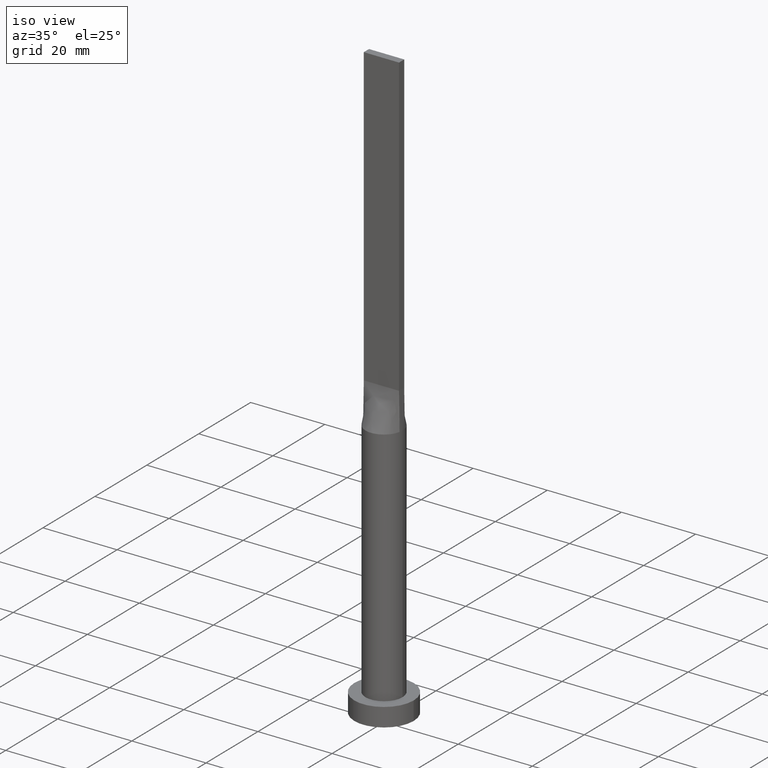
[diagram: clean part render]
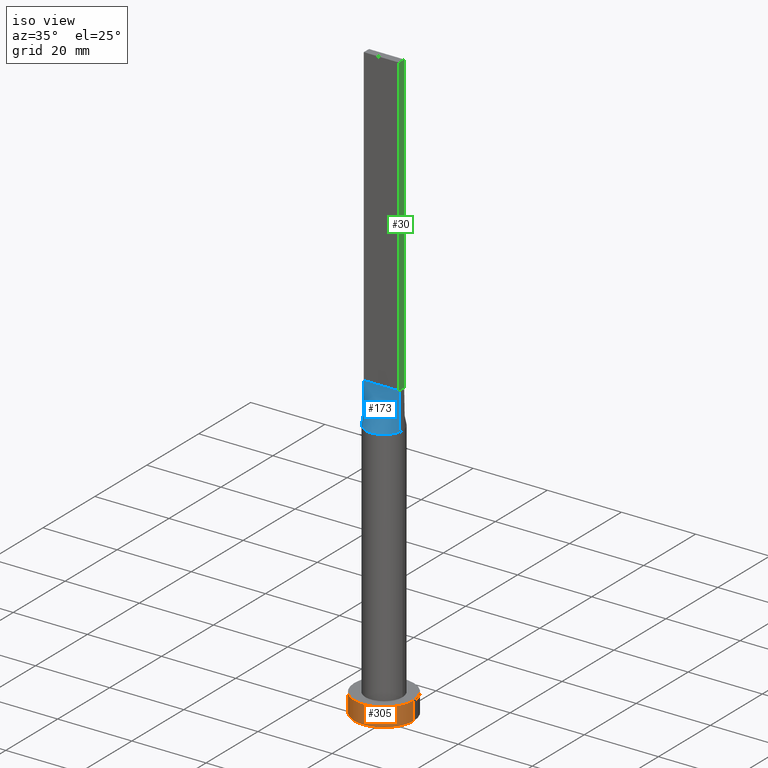
[diagram: same view with three faces highlighted in distinct colors, each labeled with its STEP entity id]
A machine part, iso view with three faces highlighted in distinct colors.
Their STEP definitions:

[orange] entity #305 — the highlighted cylindrical surface (edge-blend (fillet) strip) has radius 8 mm, axis along (-0, -0, -1).
#18 = AXIS2_PLACEMENT_3D ( 'NONE', #128, #311, #537 ) ;
#46 = DIRECTION ( 'NONE',  ( 0.000000000000000000, 0.000000000000000000, 1.000000000000000000 ) ) ;
#61 = EDGE_LOOP ( 'NONE', ( #337, #340, #204, #166 ) ) ;
#68 = EDGE_CURVE ( 'NONE', #322, #154, #453, .T. ) ;
#79 = DIRECTION ( 'NONE',  ( -0.000000000000000000, -0.000000000000000000, -1.000000000000000000 ) ) ;
#94 = VECTOR ( 'NONE', #79, 1000.000000000000000 ) ;
#128 = CARTESIAN_POINT ( 'NONE',  ( 0.000000000000000000, 0.000000000000000000, 5.000000000000000000 ) ) ;
#154 = VERTEX_POINT ( 'NONE', #399 ) ;
#166 = ORIENTED_EDGE ( 'NONE', *, *, #328, .T. ) ;
#184 = AXIS2_PLACEMENT_3D ( 'NONE', #460, #46, #458 ) ;
#204 = ORIENTED_EDGE ( 'NONE', *, *, #478, .T. ) ;
#216 = EDGE_CURVE ( 'NONE', #386, #322, #361, .T. ) ;
#223 = DIRECTION ( 'NONE',  ( -0.000000000000000000, -0.000000000000000000, -1.000000000000000000 ) ) ;
#251 = VECTOR ( 'NONE', #223, 1000.000000000000000 ) ;
#258 = CARTESIAN_POINT ( 'NONE',  ( 8.000000000000000000, 9.797174393178825657E-16, 5.000000000000000000 ) ) ;
#265 = LINE ( 'NONE', #268, #251 ) ;
#268 = CARTESIAN_POINT ( 'NONE',  ( -8.000000000000000000, 0.000000000000000000, 5.000000000000000000 ) ) ;
#305 = ADVANCED_FACE ( 'NONE', ( #584 ), #590, .T. ) ;
#306 = CARTESIAN_POINT ( 'NONE',  ( -8.000000000000000000, 0.000000000000000000, 0.000000000000000000 ) ) ;
#309 = CARTESIAN_POINT ( 'NONE',  ( -8.000000000000000000, 0.000000000000000000, 5.000000000000000000 ) ) ;
#311 = DIRECTION ( 'NONE',  ( -0.000000000000000000, -0.000000000000000000, -1.000000000000000000 ) ) ;
#312 = CARTESIAN_POINT ( 'NONE',  ( 8.000000000000000000, 9.797174393178825657E-16, 5.000000000000000000 ) ) ;
#314 = DIRECTION ( 'NONE',  ( 1.000000000000000000, 0.000000000000000000, 0.000000000000000000 ) ) ;
#322 = VERTEX_POINT ( 'NONE', #258 ) ;
#328 = EDGE_CURVE ( 'NONE', #408, #154, #567, .T. ) ;
#334 = AXIS2_PLACEMENT_3D ( 'NONE', #533, #358, #314 ) ;
#337 = ORIENTED_EDGE ( 'NONE', *, *, #68, .F. ) ;
#340 = ORIENTED_EDGE ( 'NONE', *, *, #216, .F. ) ;
#358 = DIRECTION ( 'NONE',  ( 0.000000000000000000, 0.000000000000000000, 1.000000000000000000 ) ) ;
#361 = CIRCLE ( 'NONE', #184, 8.000000000000000000 ) ;
#386 = VERTEX_POINT ( 'NONE', #309 ) ;
#399 = CARTESIAN_POINT ( 'NONE',  ( 8.000000000000000000, 9.797174393178825657E-16, 0.000000000000000000 ) ) ;
#408 = VERTEX_POINT ( 'NONE', #306 ) ;
#453 = LINE ( 'NONE', #312, #94 ) ;
#458 = DIRECTION ( 'NONE',  ( 1.000000000000000000, 0.000000000000000000, 0.000000000000000000 ) ) ;
#460 = CARTESIAN_POINT ( 'NONE',  ( 0.000000000000000000, 0.000000000000000000, 5.000000000000000000 ) ) ;
#478 = EDGE_CURVE ( 'NONE', #386, #408, #265, .T. ) ;
#533 = CARTESIAN_POINT ( 'NONE',  ( 0.000000000000000000, 0.000000000000000000, 0.000000000000000000 ) ) ;
#537 = DIRECTION ( 'NONE',  ( -1.000000000000000000, 0.000000000000000000, 0.000000000000000000 ) ) ;
#567 = CIRCLE ( 'NONE', #334, 8.000000000000000000 ) ;
#584 = FACE_OUTER_BOUND ( 'NONE', #61, .T. ) ;
#590 = CYLINDRICAL_SURFACE ( 'NONE', #18, 8.000000000000000000 ) ;

[blue] entity #173 — the highlighted face is a freeform B-spline surface patch.
#1 = CARTESIAN_POINT ( 'NONE',  ( 1.583333333333339255, -0.9999999999999995559, 79.99999999999998579 ) ) ;
#4 = CARTESIAN_POINT ( 'NONE',  ( 0.3958333333333403647, -0.9999999999999993339, 79.99999999999998579 ) ) ;
#7 = CARTESIAN_POINT ( 'NONE',  ( -4.667610010780609997, -1.859271532507959845, 70.00000000000001421 ) ) ;
#15 = ORIENTED_EDGE ( 'NONE', *, *, #591, .F. ) ;
#42 = CARTESIAN_POINT ( 'NONE',  ( -4.892748924933745691, -1.030052405249207936, 70.00000000000000000 ) ) ;
#44 = B_SPLINE_SURFACE_WITH_KNOTS ( 'NONE', 3, 1, ( 
 ( #42, #183 ),
 ( #419, #103 ),
 ( #7, #186 ),
 ( #367, #422 ),
 ( #53, #509 ),
 ( #513, #191 ),
 ( #193, #549 ),
 ( #552, #412 ),
 ( #141, #95 ),
 ( #99, #321 ),
 ( #283, #56 ),
 ( #280, #239 ),
 ( #276, #4 ),
 ( #375, #147 ),
 ( #369, #469 ),
 ( #407, #1 ),
 ( #561, #143 ),
 ( #463, #50 ),
 ( #371, #559 ),
 ( #233, #229 ),
 ( #149, #272 ),
 ( #326, #139 ) ),
 .UNSPECIFIED., .F., .F., .F.,
 ( 4, 2, 2, 2, 2, 2, 2, 2, 2, 2, 4 ),
 ( 2, 2 ),
 ( 0.000000000000000000, 0.1250000000000000278, 0.2500000000000000555, 0.3750000000000001110, 0.4375000000000000555, 0.5000000000000000000, 0.5625000000000000000, 0.6250000000000000000, 0.7500000000000000000, 0.8750000000000001110, 1.000000000000000000 ),
 ( 0.000000000000000000, 1.000000000000000000 ),
 .UNSPECIFIED. ) ;
#47 = EDGE_CURVE ( 'NONE', #511, #275, #307, .T. ) ;
#50 = CARTESIAN_POINT ( 'NONE',  ( 2.770833333333338366, -0.9999999999999995559, 79.99999999999998579 ) ) ;
#53 = CARTESIAN_POINT ( 'NONE',  ( -3.900093280396790263, -3.182195704254722646, 70.00000000000000000 ) ) ;
#56 = CARTESIAN_POINT ( 'NONE',  ( -0.1979166666666593299, -0.9999999999999993339, 79.99999999999998579 ) ) ;
#58 = VECTOR ( 'NONE', #133, 999.9999999999998863 ) ;
#64 = ORIENTED_EDGE ( 'NONE', *, *, #286, .T. ) ;
#69 = CIRCLE ( 'NONE', #108, 5.000000000000000000 ) ;
#71 = VERTEX_POINT ( 'NONE', #357 ) ;
#75 = CARTESIAN_POINT ( 'NONE',  ( 0.000000000000000000, 0.000000000000000000, 70.00000000000000000 ) ) ;
#87 = VECTOR ( 'NONE', #411, 1000.000000000000000 ) ;
#88 = LINE ( 'NONE', #370, #58 ) ;
#95 = CARTESIAN_POINT ( 'NONE',  ( -0.7916666666666588581, -0.9999999999999991118, 79.99999999999998579 ) ) ;
#99 = CARTESIAN_POINT ( 'NONE',  ( -0.6760916456145810161, -4.965368365385190330, 70.00000000000004263 ) ) ;
#103 = CARTESIAN_POINT ( 'NONE',  ( -4.354166666666665186, -0.9999999999999991118, 80.00000000000000000 ) ) ;
#108 = AXIS2_PLACEMENT_3D ( 'NONE', #75, #260, #350 ) ;
#133 = DIRECTION ( 'NONE',  ( -0.01427337385845013802, -0.003004920812305207807, -0.9998936149659166661 ) ) ;
#139 = CARTESIAN_POINT ( 'NONE',  ( 4.750000000000000000, -0.9999999999999997780, 80.00000000000000000 ) ) ;
#141 = CARTESIAN_POINT ( 'NONE',  ( -1.331739278681922656, -4.830988864699811813, 70.00000000000001421 ) ) ;
#143 = CARTESIAN_POINT ( 'NONE',  ( 1.979166666666672514, -0.9999999999999995559, 79.99999999999998579 ) ) ;
#147 = CARTESIAN_POINT ( 'NONE',  ( 0.7916666666666735130, -0.9999999999999995559, 79.99999999999998579 ) ) ;
#149 = CARTESIAN_POINT ( 'NONE',  ( 4.808752461626937702, -1.429035605956550103, 70.00000000000000000 ) ) ;
#156 = CARTESIAN_POINT ( 'NONE',  ( 4.750000000000000000, -0.9999999999999997780, 80.00000000000000000 ) ) ;
#165 = CARTESIAN_POINT ( 'NONE',  ( -4.750000000000000000, -0.9999999999999991118, 80.00000000000000000 ) ) ;
#173 = ADVANCED_FACE ( 'NONE', ( #236 ), #44, .T. ) ;
#183 = CARTESIAN_POINT ( 'NONE',  ( -4.750000000000000000, -0.9999999999999991118, 80.00000000000000000 ) ) ;
#186 = CARTESIAN_POINT ( 'NONE',  ( -3.958333333333331261, -0.9999999999999991118, 80.00000000000000000 ) ) ;
#191 = CARTESIAN_POINT ( 'NONE',  ( -1.979166666666659857, -0.9999999999999991118, 79.99999999999998579 ) ) ;
#193 = CARTESIAN_POINT ( 'NONE',  ( -2.546422404201599488, -4.351724242187074765, 70.00000000000000000 ) ) ;
#229 = CARTESIAN_POINT ( 'NONE',  ( 3.958333333333336146, -0.9999999999999995559, 79.99999999999998579 ) ) ;
#233 = CARTESIAN_POINT ( 'NONE',  ( 4.667610010780611773, -1.859271532507964286, 70.00000000000005684 ) ) ;
#236 = FACE_OUTER_BOUND ( 'NONE', #570, .T. ) ;
#239 = CARTESIAN_POINT ( 'NONE',  ( 0.1979166666666737351, -0.9999999999999993339, 79.99999999999998579 ) ) ;
#260 = DIRECTION ( 'NONE',  ( 0.000000000000000000, 0.000000000000000000, 1.000000000000000000 ) ) ;
#272 = CARTESIAN_POINT ( 'NONE',  ( 4.354166666666668739, -0.9999999999999995559, 79.99999999999998579 ) ) ;
#275 = VERTEX_POINT ( 'NONE', #156 ) ;
#276 = CARTESIAN_POINT ( 'NONE',  ( 0.6760916456145764641, -4.965368365385190330, 70.00000000000002842 ) ) ;
#280 = CARTESIAN_POINT ( 'NONE',  ( 0.3380808736611294329, -5.000000000000000000, 69.99999999999998579 ) ) ;
#281 = ORIENTED_EDGE ( 'NONE', *, *, #519, .T. ) ;
#283 = CARTESIAN_POINT ( 'NONE',  ( -0.3380808736611334853, -5.000000000000000000, 70.00000000000001421 ) ) ;
#286 = EDGE_CURVE ( 'NONE', #71, #511, #69, .T. ) ;
#289 = ORIENTED_EDGE ( 'NONE', *, *, #47, .T. ) ;
#298 = VERTEX_POINT ( 'NONE', #165 ) ;
#307 = LINE ( 'NONE', #402, #406 ) ;
#316 = CARTESIAN_POINT ( 'NONE',  ( 4.892747712986307285, -1.030052143680505683, 70.00000000000000000 ) ) ;
#321 = CARTESIAN_POINT ( 'NONE',  ( -0.3958333333333258208, -0.9999999999999991118, 79.99999999999998579 ) ) ;
#326 = CARTESIAN_POINT ( 'NONE',  ( 4.892748924933744803, -1.030052405249212155, 70.00000000000000000 ) ) ;
#350 = DIRECTION ( 'NONE',  ( 1.000000000000000000, 0.000000000000000000, 0.000000000000000000 ) ) ;
#357 = CARTESIAN_POINT ( 'NONE',  ( -4.892752739180945554, -1.030053203145257168, 70.00000000000000000 ) ) ;
#367 = CARTESIAN_POINT ( 'NONE',  ( -4.214142381859629971, -2.735777372109855499, 70.00000000000002842 ) ) ;
#369 = CARTESIAN_POINT ( 'NONE',  ( 1.649264041307592965, -4.731318088779740805, 70.00000000000000000 ) ) ;
#370 = CARTESIAN_POINT ( 'NONE',  ( -4.821374462466872401, -1.015026202624603524, 75.00000000000001421 ) ) ;
#371 = CARTESIAN_POINT ( 'NONE',  ( 4.214142381859629971, -2.735777372109856831, 70.00000000000001421 ) ) ;
#375 = CARTESIAN_POINT ( 'NONE',  ( 1.331739278681917771, -4.830988864699812702, 70.00000000000001421 ) ) ;
#402 = CARTESIAN_POINT ( 'NONE',  ( 4.821374462466871513, -1.015026202624605967, 75.00000000000001421 ) ) ;
#406 = VECTOR ( 'NONE', #585, 999.9999999999998863 ) ;
#407 = CARTESIAN_POINT ( 'NONE',  ( 2.546422404201595491, -4.351724242187078318, 70.00000000000000000 ) ) ;
#411 = DIRECTION ( 'NONE',  ( 1.000000000000000000, -6.847592668329501559E-17, 0.000000000000000000 ) ) ;
#412 = CARTESIAN_POINT ( 'NONE',  ( -0.9895833333333253767, -0.9999999999999991118, 79.99999999999998579 ) ) ;
#414 = LINE ( 'NONE', #507, #87 ) ;
#419 = CARTESIAN_POINT ( 'NONE',  ( -4.808752461626938590, -1.429035605956546329, 69.99999999999998579 ) ) ;
#422 = CARTESIAN_POINT ( 'NONE',  ( -3.166666666666662078, -0.9999999999999991118, 79.99999999999998579 ) ) ;
#463 = CARTESIAN_POINT ( 'NONE',  ( 3.900093280396789819, -3.182195704254725754, 70.00000000000000000 ) ) ;
#469 = CARTESIAN_POINT ( 'NONE',  ( 0.9895833333333399207, -0.9999999999999995559, 79.99999999999998579 ) ) ;
#507 = CARTESIAN_POINT ( 'NONE',  ( -4.750000000000000000, -0.9999999999999991118, 80.00000000000000000 ) ) ;
#509 = CARTESIAN_POINT ( 'NONE',  ( -2.770833333333328152, -0.9999999999999991118, 79.99999999999998579 ) ) ;
#511 = VERTEX_POINT ( 'NONE', #316 ) ;
#513 = CARTESIAN_POINT ( 'NONE',  ( -3.067114325249250317, -3.991228734590923199, 70.00000000000001421 ) ) ;
#519 = EDGE_CURVE ( 'NONE', #298, #71, #88, .T. ) ;
#549 = CARTESIAN_POINT ( 'NONE',  ( -1.583333333333325932, -0.9999999999999991118, 79.99999999999998579 ) ) ;
#552 = CARTESIAN_POINT ( 'NONE',  ( -1.649264041307596962, -4.731318088779738140, 70.00000000000000000 ) ) ;
#559 = CARTESIAN_POINT ( 'NONE',  ( 3.166666666666671404, -0.9999999999999995559, 79.99999999999998579 ) ) ;
#561 = CARTESIAN_POINT ( 'NONE',  ( 3.067114325249245876, -3.991228734590925864, 70.00000000000000000 ) ) ;
#570 = EDGE_LOOP ( 'NONE', ( #64, #289, #15, #281 ) ) ;
#585 = DIRECTION ( 'NONE',  ( -0.01427337385845005129, 0.003004920812305554318, 0.9998936149659166661 ) ) ;
#591 = EDGE_CURVE ( 'NONE', #298, #275, #414, .T. ) ;

[green] entity #30 — the highlighted planar face has unit normal (-1, 0, 0).
#12 = CARTESIAN_POINT ( 'NONE',  ( 4.750000000000000000, 1.000000000000000000, 80.00000000000000000 ) ) ;
#16 = EDGE_CURVE ( 'NONE', #416, #378, #157, .T. ) ;
#27 = CARTESIAN_POINT ( 'NONE',  ( 4.750000000000000000, 1.000000000000000000, 160.0000000000000000 ) ) ;
#29 = CARTESIAN_POINT ( 'NONE',  ( 4.750000000000000000, -0.9999999999999997780, 160.0000000000000000 ) ) ;
#30 = ADVANCED_FACE ( 'NONE', ( #580 ), #302, .F. ) ;
#35 = EDGE_CURVE ( 'NONE', #275, #378, #244, .T. ) ;
#51 = EDGE_LOOP ( 'NONE', ( #278, #597, #577, #432 ) ) ;
#85 = DIRECTION ( 'NONE',  ( 0.000000000000000000, 1.000000000000000000, 0.000000000000000000 ) ) ;
#86 = CARTESIAN_POINT ( 'NONE',  ( 4.750000000000000000, -0.9999999999999997780, 160.0000000000000000 ) ) ;
#120 = DIRECTION ( 'NONE',  ( -0.000000000000000000, -0.000000000000000000, -1.000000000000000000 ) ) ;
#123 = VERTEX_POINT ( 'NONE', #86 ) ;
#126 = CARTESIAN_POINT ( 'NONE',  ( 4.750000000000000000, 1.000000000000000000, 80.00000000000000000 ) ) ;
#137 = EDGE_CURVE ( 'NONE', #123, #275, #446, .T. ) ;
#156 = CARTESIAN_POINT ( 'NONE',  ( 4.750000000000000000, -0.9999999999999997780, 80.00000000000000000 ) ) ;
#157 = LINE ( 'NONE', #529, #296 ) ;
#169 = AXIS2_PLACEMENT_3D ( 'NONE', #346, #531, #490 ) ;
#174 = LINE ( 'NONE', #501, #410 ) ;
#213 = DIRECTION ( 'NONE',  ( -0.000000000000000000, -0.000000000000000000, -1.000000000000000000 ) ) ;
#244 = LINE ( 'NONE', #12, #443 ) ;
#275 = VERTEX_POINT ( 'NONE', #156 ) ;
#278 = ORIENTED_EDGE ( 'NONE', *, *, #35, .T. ) ;
#296 = VECTOR ( 'NONE', #120, 1000.000000000000000 ) ;
#302 = PLANE ( 'NONE',  #169 ) ;
#346 = CARTESIAN_POINT ( 'NONE',  ( 4.750000000000000000, -0.9999999999999997780, 160.0000000000000000 ) ) ;
#378 = VERTEX_POINT ( 'NONE', #126 ) ;
#395 = DIRECTION ( 'NONE',  ( -0.000000000000000000, 1.000000000000000000, -0.000000000000000000 ) ) ;
#410 = VECTOR ( 'NONE', #85, 1000.000000000000000 ) ;
#416 = VERTEX_POINT ( 'NONE', #27 ) ;
#432 = ORIENTED_EDGE ( 'NONE', *, *, #137, .T. ) ;
#443 = VECTOR ( 'NONE', #395, 1000.000000000000000 ) ;
#446 = LINE ( 'NONE', #29, #500 ) ;
#465 = EDGE_CURVE ( 'NONE', #123, #416, #174, .T. ) ;
#490 = DIRECTION ( 'NONE',  ( 0.000000000000000000, 0.000000000000000000, 1.000000000000000000 ) ) ;
#500 = VECTOR ( 'NONE', #213, 1000.000000000000000 ) ;
#501 = CARTESIAN_POINT ( 'NONE',  ( 4.750000000000000000, -0.9999999999999997780, 160.0000000000000000 ) ) ;
#529 = CARTESIAN_POINT ( 'NONE',  ( 4.750000000000000000, 1.000000000000000000, 160.0000000000000000 ) ) ;
#531 = DIRECTION ( 'NONE',  ( -1.000000000000000000, 0.000000000000000000, 0.000000000000000000 ) ) ;
#577 = ORIENTED_EDGE ( 'NONE', *, *, #465, .F. ) ;
#580 = FACE_OUTER_BOUND ( 'NONE', #51, .T. ) ;
#597 = ORIENTED_EDGE ( 'NONE', *, *, #16, .F. ) ;